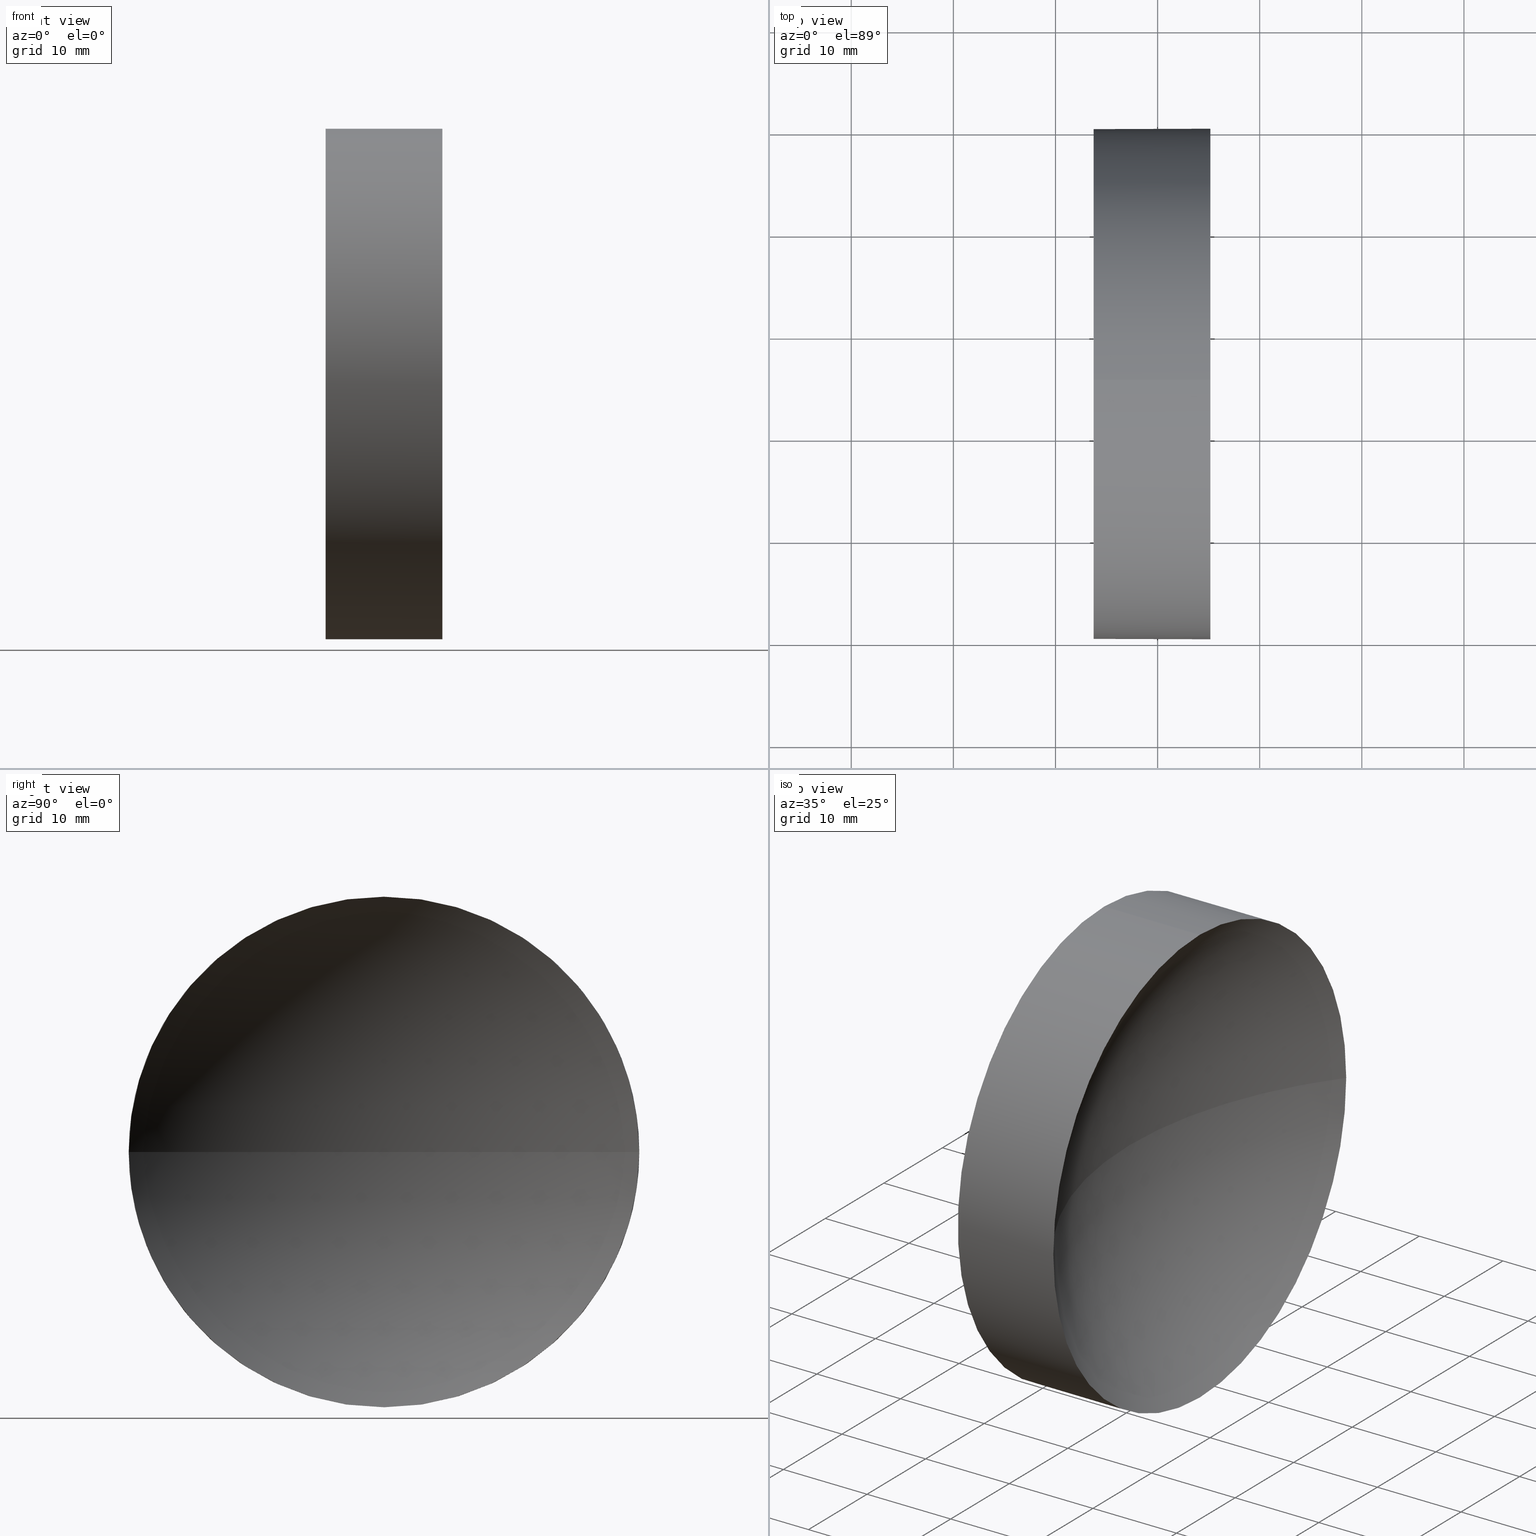
[diagram: canonical four-view strip — front | top / right | iso, engineering-drawing reading convention]
A machine part, canonical four-view strip (front | top / right | iso — engineering-drawing reading convention). The complete STEP part file that produces these views, byte-faithful:
ISO-10303-21;
HEADER;
FILE_DESCRIPTION (( 'STEP AP214' ),
    '1' );
FILE_NAME ('120055.STEP',
    '2019-06-18T01:34:18',
    ( '' ),
    ( '' ),
    'SwSTEP 2.0',
    'SolidWorks 2016',
    '' );
FILE_SCHEMA (( 'AUTOMOTIVE_DESIGN' ));
ENDSEC;

DATA;
#1 = EDGE_CURVE ( 'NONE', #49, #8, #129, .T. ) ;
#2 = ORIENTED_EDGE ( 'NONE', *, *, #14, .T. ) ;
#3 = ORIENTED_EDGE ( 'NONE', *, *, #160, .F. ) ;
#4 = ORIENTED_EDGE ( 'NONE', *, *, #60, .F. ) ;
#5 = ADVANCED_FACE ( 'NONE', ( #87 ), #7, .T. ) ;
#6 = CARTESIAN_POINT ( 'NONE',  ( 116.7394371346435000, 65.15563045701520700, 0.0000000000000000000 ) ) ;
#7 = CYLINDRICAL_SURFACE ( 'NONE', #61, 24.99999999999999300 ) ;
#8 = VERTEX_POINT ( 'NONE', #22 ) ;
#9 = DIRECTION ( 'NONE',  ( -1.000000000000000000, 0.0000000000000000000, 0.0000000000000000000 ) ) ;
#10 = DIRECTION ( 'NONE',  ( 0.0000000000000000000, 0.0000000000000000000, -1.000000000000000000 ) ) ;
#11 = CARTESIAN_POINT ( 'NONE',  ( 158.0394371346434900, 65.15563045701520700, 0.0000000000000000000 ) ) ;
#12 = DIRECTION ( 'NONE',  ( 0.0000000000000000000, -1.224646799147353200E-016, 1.000000000000000000 ) ) ;
#13 = PRODUCT_CONTEXT ( 'NONE', #82, 'mechanical' ) ;
#14 = EDGE_CURVE ( 'NONE', #49, #55, #74, .T. ) ;
#15 = ADVANCED_FACE ( 'NONE', ( #179 ), #172, .F. ) ;
#16 = PRESENTATION_STYLE_ASSIGNMENT (( #110 ) ) ;
#17 = EDGE_CURVE ( 'NONE', #164, #158, #43, .T. ) ;
#18 = ORIENTED_EDGE ( 'NONE', *, *, #52, .T. ) ;
#19 = EDGE_CURVE ( 'NONE', #158, #92, #135, .T. ) ;
#20 = CIRCLE ( 'NONE', #21, 24.99999999999999300 ) ;
#21 = AXIS2_PLACEMENT_3D ( 'NONE', #41, #125, #180 ) ;
#22 = CARTESIAN_POINT ( 'NONE',  ( 125.1655873448789900, 65.15563045701519200, 24.99999999999999300 ) ) ;
#23 = DIRECTION ( 'NONE',  ( 0.0000000000000000000, -1.000000000000000000, 0.0000000000000000000 ) ) ;
#24 = FILL_AREA_STYLE_COLOUR ( '', #132 ) ;
#25 = DIRECTION ( 'NONE',  ( -1.000000000000000000, -0.0000000000000000000, -0.0000000000000000000 ) ) ;
#26 = ORIENTED_EDGE ( 'NONE', *, *, #120, .F. ) ;
#27 =( NAMED_UNIT ( * ) PLANE_ANGLE_UNIT ( ) SI_UNIT ( $, .RADIAN. ) );
#28 = SHAPE_DEFINITION_REPRESENTATION ( #29, #86 ) ;
#29 = PRODUCT_DEFINITION_SHAPE ( 'NONE', 'NONE',  #58 ) ;
#30 = PRODUCT_DEFINITION_FORMATION_WITH_SPECIFIED_SOURCE ( '�κ�', '', #94, .NOT_KNOWN. ) ;
#31 = SURFACE_STYLE_FILL_AREA ( #112 ) ;
#32 =( GEOMETRIC_REPRESENTATION_CONTEXT ( 3 ) GLOBAL_UNCERTAINTY_ASSIGNED_CONTEXT ( ( #66 ) ) GLOBAL_UNIT_ASSIGNED_CONTEXT ( ( #40, #181, #152 ) ) REPRESENTATION_CONTEXT ( 'NONE', 'WORKASPACE' ) );
#33 = AXIS2_PLACEMENT_3D ( 'NONE', #95, #10, #9 ) ;
#34 = VECTOR ( 'NONE', #165, 1000.000000000000000 ) ;
#35 = CARTESIAN_POINT ( 'NONE',  ( 125.1655873448789900, 65.15563045701519200, 0.0000000000000000000 ) ) ;
#36 = DIRECTION ( 'NONE',  ( 0.0000000000000000000, 0.0000000000000000000, 1.000000000000000000 ) ) ;
#37 = VECTOR ( 'NONE', #151, 1000.000000000000000 ) ;
#38 = ORIENTED_EDGE ( 'NONE', *, *, #1, .F. ) ;
#39 = AXIS2_PLACEMENT_3D ( 'NONE', #53, #155, #68 ) ;
#40 =( LENGTH_UNIT ( ) NAMED_UNIT ( * ) SI_UNIT ( .MILLI., .METRE. ) );
#41 = CARTESIAN_POINT ( 'NONE',  ( 125.1655873448789900, 65.15563045701519200, 0.0000000000000000000 ) ) ;
#42 =( LENGTH_UNIT ( ) NAMED_UNIT ( * ) SI_UNIT ( .MILLI., .METRE. ) );
#43 = LINE ( 'NONE', #46, #37 ) ;
#44 = EDGE_LOOP ( 'NONE', ( #150, #62, #159, #26 ) ) ;
#45 = ORIENTED_EDGE ( 'NONE', *, *, #162, .F. ) ;
#46 = CARTESIAN_POINT ( 'NONE',  ( 105.6218371238301200, 65.15563045701519200, -24.99999999999999300 ) ) ;
#47 = CARTESIAN_POINT ( 'NONE',  ( 113.7394371346435000, 65.15563045701519200, 0.0000000000000000000 ) ) ;
#48 = CYLINDRICAL_SURFACE ( 'NONE', #130, 24.99999999999999300 ) ;
#49 = VERTEX_POINT ( 'NONE', #166 ) ;
#50 = CARTESIAN_POINT ( 'NONE',  ( 125.1655873448789900, 90.15563045701519200, 3.061616997868381500E-015 ) ) ;
#51 = ADVANCED_FACE ( 'NONE', ( #183 ), #48, .T. ) ;
#52 = EDGE_CURVE ( 'NONE', #126, #164, #59, .T. ) ;
#53 = CARTESIAN_POINT ( 'NONE',  ( 0.0000000000000000000, 0.0000000000000000000, 0.0000000000000000000 ) ) ;
#54 = SURFACE_STYLE_USAGE ( .BOTH. , #176 ) ;
#55 = VERTEX_POINT ( 'NONE', #6 ) ;
#56 = DIRECTION ( 'NONE',  ( 1.000000000000000000, 0.0000000000000000000, 0.0000000000000000000 ) ) ;
#57 = EDGE_CURVE ( 'NONE', #92, #158, #67, .T. ) ;
#58 = PRODUCT_DEFINITION ( 'δ֪', '', #30, #146 ) ;
#59 = CIRCLE ( 'NONE', #72, 24.99999999999999300 ) ;
#60 = EDGE_CURVE ( 'NONE', #8, #92, #83, .T. ) ;
#61 = AXIS2_PLACEMENT_3D ( 'NONE', #90, #173, #36 ) ;
#62 = ORIENTED_EDGE ( 'NONE', *, *, #162, .T. ) ;
#63 = DIRECTION ( 'NONE',  ( 0.0000000000000000000, 0.0000000000000000000, 1.000000000000000000 ) ) ;
#64 = DIRECTION ( 'NONE',  ( 0.0000000000000000000, 0.0000000000000000000, 1.000000000000000000 ) ) ;
#65 =( LENGTH_UNIT ( ) NAMED_UNIT ( * ) SI_UNIT ( .MILLI., .METRE. ) );
#66 = UNCERTAINTY_MEASURE_WITH_UNIT (LENGTH_MEASURE( 1.000000000000000100E-005 ), #40, 'distance_accuracy_value', 'NONE');
#67 = CIRCLE ( 'NONE', #105, 24.99999999999999300 ) ;
#68 = DIRECTION ( 'NONE',  ( 1.000000000000000000, 0.0000000000000000000, 0.0000000000000000000 ) ) ;
#69 =( NAMED_UNIT ( * ) SI_UNIT ( $, .STERADIAN. ) SOLID_ANGLE_UNIT ( ) );
#70 =( GEOMETRIC_REPRESENTATION_CONTEXT ( 3 ) GLOBAL_UNCERTAINTY_ASSIGNED_CONTEXT ( ( #133 ) ) GLOBAL_UNIT_ASSIGNED_CONTEXT ( ( #65, #27, #81 ) ) REPRESENTATION_CONTEXT ( 'NONE', 'WORKASPACE' ) );
#71 = DIRECTION ( 'NONE',  ( 0.0000000000000000000, 0.0000000000000000000, 1.000000000000000000 ) ) ;
#72 = AXIS2_PLACEMENT_3D ( 'NONE', #35, #75, #136 ) ;
#73 = EDGE_LOOP ( 'NONE', ( #18, #116, #149, #4, #161 ) ) ;
#74 = CIRCLE ( 'NONE', #33, 41.30000000000000400 ) ;
#75 = DIRECTION ( 'NONE',  ( -1.000000000000000000, -0.0000000000000000000, -0.0000000000000000000 ) ) ;
#76 = STYLED_ITEM ( 'NONE', ( #16 ), #86 ) ;
#77 = ORIENTED_EDGE ( 'NONE', *, *, #60, .T. ) ;
#78 = CARTESIAN_POINT ( 'NONE',  ( 105.6218371238301200, 65.15563045701519200, 0.0000000000000000000 ) ) ;
#79 = SURFACE_STYLE_FILL_AREA ( #128 ) ;
#80 = ORIENTED_EDGE ( 'NONE', *, *, #17, .F. ) ;
#81 =( NAMED_UNIT ( * ) SI_UNIT ( $, .STERADIAN. ) SOLID_ANGLE_UNIT ( ) );
#82 = APPLICATION_CONTEXT ( 'automotive_design' ) ;
#83 = LINE ( 'NONE', #147, #34 ) ;
#84 = ORIENTED_EDGE ( 'NONE', *, *, #120, .T. ) ;
#85 = AXIS2_PLACEMENT_3D ( 'NONE', #137, #134, #23 ) ;
#86 = ADVANCED_BREP_SHAPE_REPRESENTATION ( '120055', ( #177, #39 ), #32 ) ;
#87 = FACE_OUTER_BOUND ( 'NONE', #73, .T. ) ;
#88 = AXIS2_PLACEMENT_3D ( 'NONE', #102, #25, #115 ) ;
#89 = PRESENTATION_STYLE_ASSIGNMENT (( #54 ) ) ;
#90 = CARTESIAN_POINT ( 'NONE',  ( 105.6218371238301200, 65.15563045701519200, 0.0000000000000000000 ) ) ;
#91 = STYLED_ITEM ( 'NONE', ( #89 ), #177 ) ;
#92 = VERTEX_POINT ( 'NONE', #124 ) ;
#93 = DIRECTION ( 'NONE',  ( -1.000000000000000000, -0.0000000000000000000, -0.0000000000000000000 ) ) ;
#94 = PRODUCT ( '120055', '120055', '', ( #13 ) ) ;
#95 = CARTESIAN_POINT ( 'NONE',  ( 158.0394371346434900, 65.15563045701520700, 0.0000000000000000000 ) ) ;
#96 = PRODUCT_RELATED_PRODUCT_CATEGORY ( 'part', '', ( #94 ) ) ;
#97 = DIRECTION ( 'NONE',  ( 0.0000000000000000000, 0.0000000000000000000, 1.000000000000000000 ) ) ;
#98 = AXIS2_PLACEMENT_3D ( 'NONE', #163, #138, #108 ) ;
#99 = EDGE_LOOP ( 'NONE', ( #45, #3, #38, #2 ) ) ;
#100 = FILL_AREA_STYLE_COLOUR ( '', #119 ) ;
#101 = AXIS2_PLACEMENT_3D ( 'NONE', #123, #93, #64 ) ;
#102 = CARTESIAN_POINT ( 'NONE',  ( 125.1655873448789900, 65.15563045701519200, 0.0000000000000000000 ) ) ;
#103 = PRESENTATION_LAYER_ASSIGNMENT (  '', '', ( #91 ) ) ;
#104 = SPHERICAL_SURFACE ( 'NONE', #127, 41.30000000000000400 ) ;
#105 = AXIS2_PLACEMENT_3D ( 'NONE', #47, #148, #63 ) ;
#106 = ORIENTED_EDGE ( 'NONE', *, *, #57, .T. ) ;
#107 = ADVANCED_FACE ( 'NONE', ( #141 ), #139, .F. ) ;
#108 = DIRECTION ( 'NONE',  ( 0.0000000000000000000, 0.0000000000000000000, 1.000000000000000000 ) ) ;
#109 = PRESENTATION_LAYER_ASSIGNMENT (  '', '', ( #76 ) ) ;
#110 = SURFACE_STYLE_USAGE ( .BOTH. , #157 ) ;
#111 = ADVANCED_FACE ( 'NONE', ( #131 ), #104, .F. ) ;
#112 = FILL_AREA_STYLE ('',( #24 ) ) ;
#113 = MECHANICAL_DESIGN_GEOMETRIC_PRESENTATION_REPRESENTATION (  '', ( #91 ), #70 ) ;
#114 = APPLICATION_PROTOCOL_DEFINITION ( 'draft international standard', 'automotive_design', 1998, #156 ) ;
#115 = DIRECTION ( 'NONE',  ( 0.0000000000000000000, 0.0000000000000000000, 1.000000000000000000 ) ) ;
#116 = ORIENTED_EDGE ( 'NONE', *, *, #17, .T. ) ;
#117 = MECHANICAL_DESIGN_GEOMETRIC_PRESENTATION_REPRESENTATION (  '', ( #76 ), #185 ) ;
#118 = CLOSED_SHELL ( 'NONE', ( #5, #15, #111, #51, #107 ) ) ;
#119 = COLOUR_RGB ( '',1.000000000000000000, 1.000000000000000000, 1.000000000000000000 ) ;
#120 = EDGE_CURVE ( 'NONE', #164, #49, #20, .T. ) ;
#121 = EDGE_LOOP ( 'NONE', ( #106, #174 ) ) ;
#122 = ORIENTED_EDGE ( 'NONE', *, *, #19, .F. ) ;
#123 = CARTESIAN_POINT ( 'NONE',  ( 125.1655873448789900, 65.15563045701519200, 0.0000000000000000000 ) ) ;
#124 = CARTESIAN_POINT ( 'NONE',  ( 113.7394371346435000, 65.15563045701519200, 24.99999999999999300 ) ) ;
#125 = DIRECTION ( 'NONE',  ( -1.000000000000000000, -0.0000000000000000000, -0.0000000000000000000 ) ) ;
#126 = VERTEX_POINT ( 'NONE', #50 ) ;
#127 = AXIS2_PLACEMENT_3D ( 'NONE', #11, #71, #178 ) ;
#128 = FILL_AREA_STYLE ('',( #100 ) ) ;
#129 = CIRCLE ( 'NONE', #101, 24.99999999999999300 ) ;
#130 = AXIS2_PLACEMENT_3D ( 'NONE', #78, #175, #97 ) ;
#131 = FACE_OUTER_BOUND ( 'NONE', #99, .T. ) ;
#132 = COLOUR_RGB ( '',1.000000000000000000, 1.000000000000000000, 1.000000000000000000 ) ;
#133 = UNCERTAINTY_MEASURE_WITH_UNIT (LENGTH_MEASURE( 1.000000000000000100E-005 ), #65, 'distance_accuracy_value', 'NONE');
#134 = DIRECTION ( 'NONE',  ( 0.0000000000000000000, 0.0000000000000000000, 1.000000000000000000 ) ) ;
#135 = CIRCLE ( 'NONE', #98, 24.99999999999999300 ) ;
#136 = DIRECTION ( 'NONE',  ( 0.0000000000000000000, 0.0000000000000000000, 1.000000000000000000 ) ) ;
#137 = CARTESIAN_POINT ( 'NONE',  ( 158.0394371346434900, 65.15563045701520700, 0.0000000000000000000 ) ) ;
#138 = DIRECTION ( 'NONE',  ( -1.000000000000000000, -0.0000000000000000000, -0.0000000000000000000 ) ) ;
#139 = PLANE ( 'NONE',  #169 ) ;
#140 =( NAMED_UNIT ( * ) PLANE_ANGLE_UNIT ( ) SI_UNIT ( $, .RADIAN. ) );
#141 = FACE_OUTER_BOUND ( 'NONE', #121, .T. ) ;
#142 = CARTESIAN_POINT ( 'NONE',  ( 125.1655873448789900, 65.15563045701519200, -24.99999999999999300 ) ) ;
#143 = APPLICATION_PROTOCOL_DEFINITION ( 'draft international standard', 'automotive_design', 1998, #82 ) ;
#144 = AXIS2_PLACEMENT_3D ( 'NONE', #154, #12, #167 ) ;
#145 = CIRCLE ( 'NONE', #88, 24.99999999999999300 ) ;
#146 = PRODUCT_DEFINITION_CONTEXT ( 'detailed design', #156, 'design' ) ;
#147 = CARTESIAN_POINT ( 'NONE',  ( 105.6218371238301200, 65.15563045701519200, 24.99999999999999300 ) ) ;
#148 = DIRECTION ( 'NONE',  ( -1.000000000000000000, -0.0000000000000000000, -0.0000000000000000000 ) ) ;
#149 = ORIENTED_EDGE ( 'NONE', *, *, #57, .F. ) ;
#150 = ORIENTED_EDGE ( 'NONE', *, *, #52, .F. ) ;
#151 = DIRECTION ( 'NONE',  ( -1.000000000000000000, -0.0000000000000000000, -0.0000000000000000000 ) ) ;
#152 =( NAMED_UNIT ( * ) SI_UNIT ( $, .STERADIAN. ) SOLID_ANGLE_UNIT ( ) );
#153 = EDGE_LOOP ( 'NONE', ( #80, #84, #184, #77, #122 ) ) ;
#154 = CARTESIAN_POINT ( 'NONE',  ( 158.0394371346434900, 65.15563045701520700, 0.0000000000000000000 ) ) ;
#155 = DIRECTION ( 'NONE',  ( 0.0000000000000000000, 0.0000000000000000000, 1.000000000000000000 ) ) ;
#156 = APPLICATION_CONTEXT ( 'automotive_design' ) ;
#157 = SURFACE_SIDE_STYLE ('',( #79 ) ) ;
#158 = VERTEX_POINT ( 'NONE', #182 ) ;
#159 = ORIENTED_EDGE ( 'NONE', *, *, #14, .F. ) ;
#160 = EDGE_CURVE ( 'NONE', #8, #126, #145, .T. ) ;
#161 = ORIENTED_EDGE ( 'NONE', *, *, #160, .T. ) ;
#162 = EDGE_CURVE ( 'NONE', #126, #55, #170, .T. ) ;
#163 = CARTESIAN_POINT ( 'NONE',  ( 113.7394371346435000, 65.15563045701519200, 0.0000000000000000000 ) ) ;
#164 = VERTEX_POINT ( 'NONE', #142 ) ;
#165 = DIRECTION ( 'NONE',  ( -1.000000000000000000, -0.0000000000000000000, -0.0000000000000000000 ) ) ;
#166 = CARTESIAN_POINT ( 'NONE',  ( 125.1655873448789900, 40.15563045701520700, 0.0000000000000000000 ) ) ;
#167 = DIRECTION ( 'NONE',  ( 0.0000000000000000000, -1.000000000000000000, -1.224646799147353200E-016 ) ) ;
#168 = DIRECTION ( 'NONE',  ( 0.0000000000000000000, 0.0000000000000000000, -1.000000000000000000 ) ) ;
#169 = AXIS2_PLACEMENT_3D ( 'NONE', #171, #56, #168 ) ;
#170 = CIRCLE ( 'NONE', #144, 41.30000000000000400 ) ;
#171 = CARTESIAN_POINT ( 'NONE',  ( 113.7394371346435000, 65.15563045701519200, 0.0000000000000000000 ) ) ;
#172 = SPHERICAL_SURFACE ( 'NONE', #85, 41.30000000000000400 ) ;
#173 = DIRECTION ( 'NONE',  ( -1.000000000000000000, -0.0000000000000000000, -0.0000000000000000000 ) ) ;
#174 = ORIENTED_EDGE ( 'NONE', *, *, #19, .T. ) ;
#175 = DIRECTION ( 'NONE',  ( -1.000000000000000000, -0.0000000000000000000, -0.0000000000000000000 ) ) ;
#176 = SURFACE_SIDE_STYLE ('',( #31 ) ) ;
#177 = MANIFOLD_SOLID_BREP ( '��ת1', #118 ) ;
#178 = DIRECTION ( 'NONE',  ( 0.0000000000000000000, -1.000000000000000000, 0.0000000000000000000 ) ) ;
#179 = FACE_OUTER_BOUND ( 'NONE', #44, .T. ) ;
#180 = DIRECTION ( 'NONE',  ( 0.0000000000000000000, 0.0000000000000000000, 1.000000000000000000 ) ) ;
#181 =( NAMED_UNIT ( * ) PLANE_ANGLE_UNIT ( ) SI_UNIT ( $, .RADIAN. ) );
#182 = CARTESIAN_POINT ( 'NONE',  ( 113.7394371346435000, 65.15563045701519200, -24.99999999999999300 ) ) ;
#183 = FACE_OUTER_BOUND ( 'NONE', #153, .T. ) ;
#184 = ORIENTED_EDGE ( 'NONE', *, *, #1, .T. ) ;
#185 =( GEOMETRIC_REPRESENTATION_CONTEXT ( 3 ) GLOBAL_UNCERTAINTY_ASSIGNED_CONTEXT ( ( #186 ) ) GLOBAL_UNIT_ASSIGNED_CONTEXT ( ( #42, #140, #69 ) ) REPRESENTATION_CONTEXT ( 'NONE', 'WORKASPACE' ) );
#186 = UNCERTAINTY_MEASURE_WITH_UNIT (LENGTH_MEASURE( 1.000000000000000100E-005 ), #42, 'distance_accuracy_value', 'NONE');
ENDSEC;
END-ISO-10303-21;
